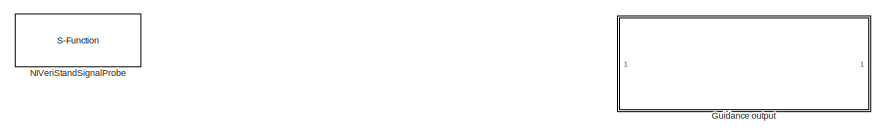
[diagram: root canvas - part 1/3, top center region]
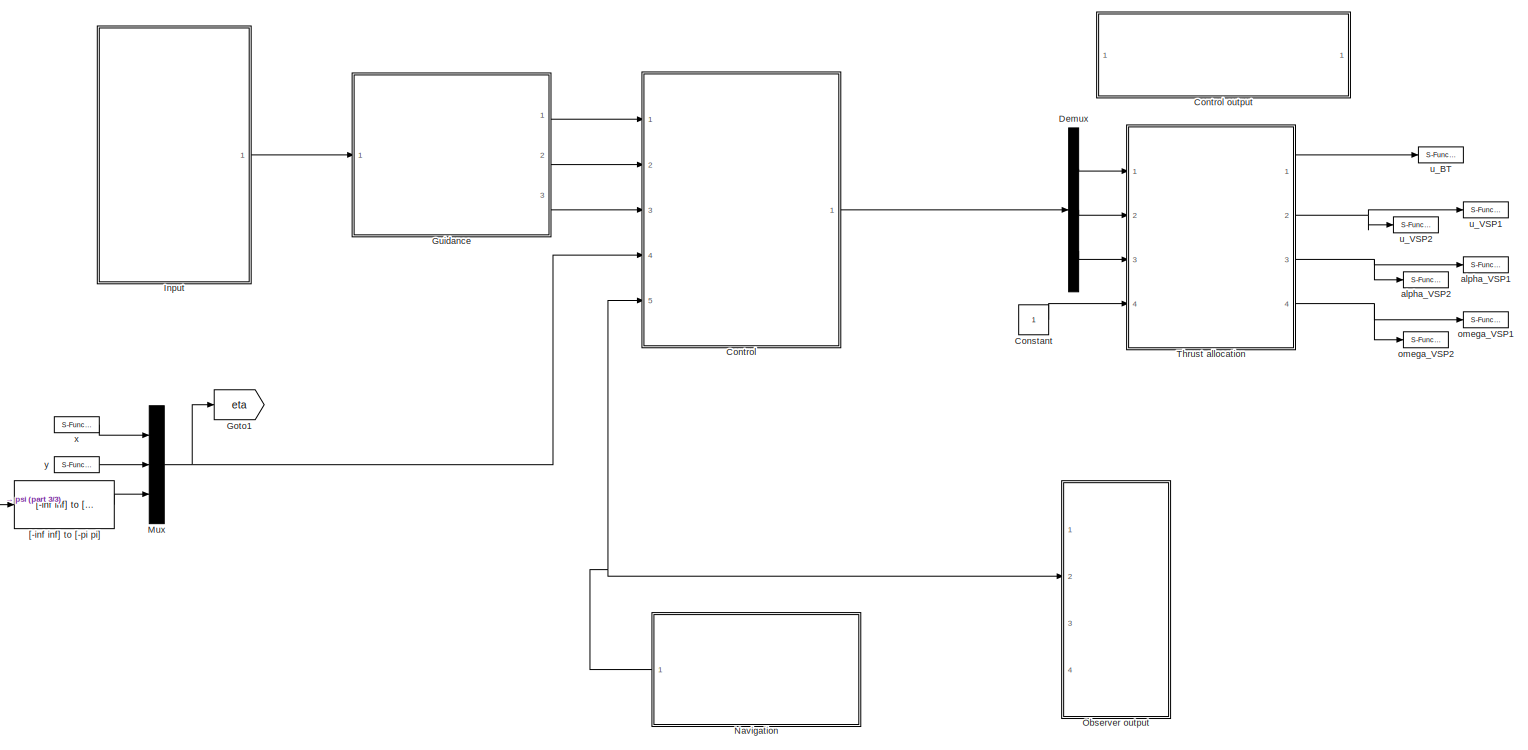
[diagram: root canvas - part 2/3, most of the canvas]
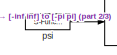
[diagram: root canvas - part 3/3, bottom left region]
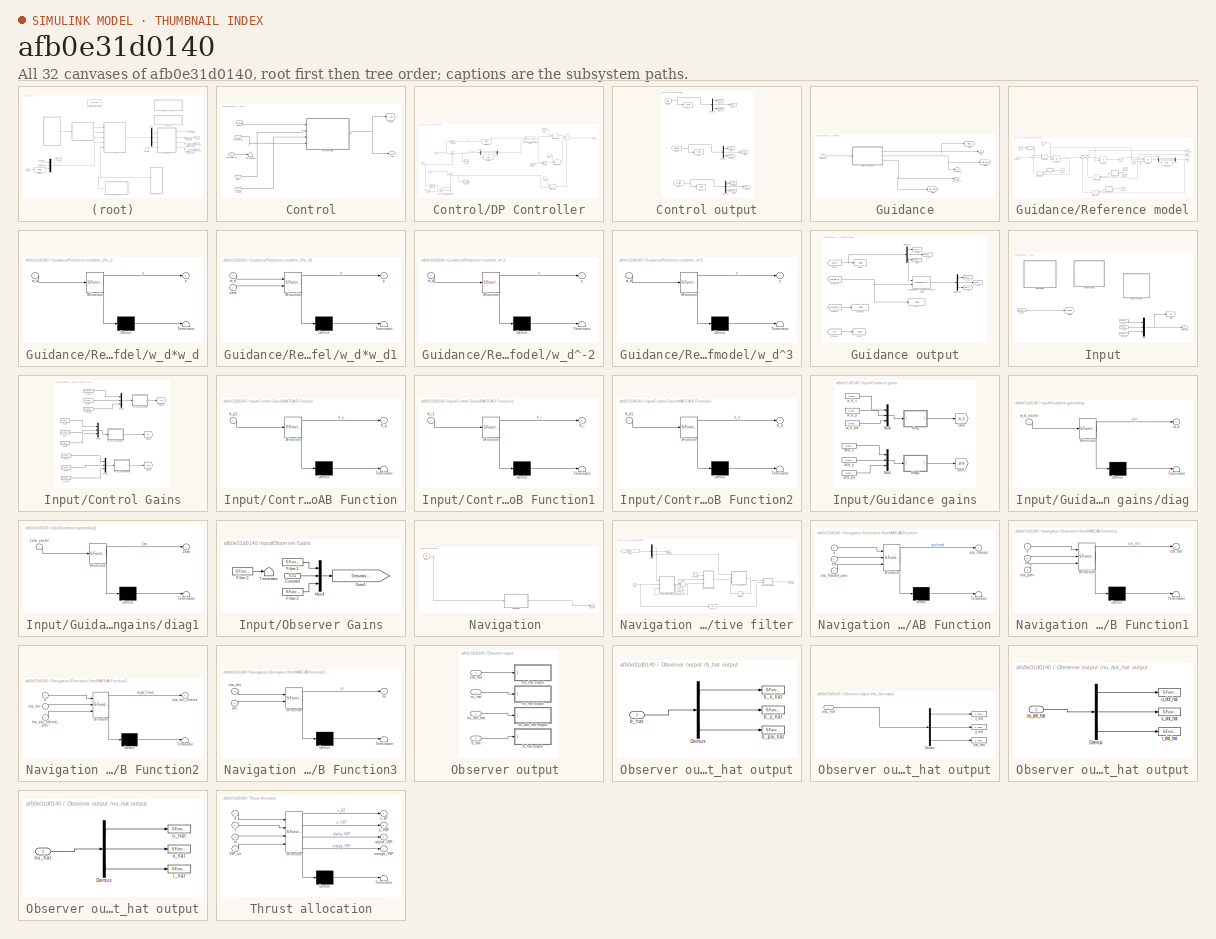
[diagram: thumbnail index - all 32 canvases of the model, root first then tree order]
MODEL slx_afb0e31d0140
KIND model
BLOCK [Constant] Constant
BLOCK [SubSystem] Control
  Ports = [5, 1]
  RequestExecContextInheritance = off
BLOCK [SubSystem] Control output
  Ports = []
  RequestExecContextInheritance = off
BLOCK [Demux] Control output/Demux1
  DisplayOption = bar
  Outputs = 3
  Ports = [1, 3]
BLOCK [Demux] Control output/Demux2
  DisplayOption = bar
  Outputs = 3
  Ports = [1, 3]
BLOCK [Demux] Control output/Demux4
  DisplayOption = bar
  Outputs = 3
  Ports = [1, 3]
BLOCK [From] Control output/From1
  GotoTag = eta_tilde
  TagVisibility = global
BLOCK [From] Control output/From2
  GotoTag = nu_tilde
  TagVisibility = global
BLOCK [From] Control output/From3
  GotoTag = tau
  TagVisibility = global
BLOCK [S-Function] Control output/psi_tilde
  CopyFcn = NIVeriStand_MDL_functions('', 'IO_copy');
  DeleteFcn = NIVeriStand_MDL_functions('', 'IO_delete');
  EnableBusSupport = off
  FunctionName = NIVeriStandIO
  MoveFcn = set_param(gcb, 'Mask', 'on');
  Parameters = width dtype portnum stime stype btype
  Ports = [1]
  Priority = 4
BLOCK [S-Function] Control output/r_tilde
  CopyFcn = NIVeriStand_MDL_functions('', 'IO_copy');
  DeleteFcn = NIVeriStand_MDL_functions('', 'IO_delete');
  EnableBusSupport = off
  FunctionName = NIVeriStandIO
  MoveFcn = set_param(gcb, 'Mask', 'on');
  Parameters = width dtype portnum stime stype btype
  Ports = [1]
  Priority = 7
BLOCK [ToFile] Control output/tau
  Commented = on
  Filename = tau.mat
  MatrixName = tau
  Ports = [1]
BLOCK [ToFile] Control output/tau1
  Commented = on
  Filename = eta_tilde.mat
  MatrixName = eta_tidle
  Ports = [1]
BLOCK [ToFile] Control output/tau2
  Commented = on
  Filename = eta_tilde.mat
  MatrixName = eta_tidle
  Ports = [1]
BLOCK [S-Function] Control output/tau_N
  CopyFcn = NIVeriStand_MDL_functions('', 'IO_copy');
  DeleteFcn = NIVeriStand_MDL_functions('', 'IO_delete');
  EnableBusSupport = off
  FunctionName = NIVeriStandIO
  MoveFcn = set_param(gcb, 'Mask', 'on');
  Parameters = width dtype portnum stime stype btype
  Ports = [1]
  Priority = 1
BLOCK [S-Function] Control output/tau_X
  CopyFcn = NIVeriStand_MDL_functions('', 'IO_copy');
  DeleteFcn = NIVeriStand_MDL_functions('', 'IO_delete');
  EnableBusSupport = off
  FunctionName = NIVeriStandIO
  MoveFcn = set_param(gcb, 'Mask', 'on');
  Parameters = width dtype portnum stime stype btype
  Ports = [1]
  Priority = 2
BLOCK [S-Function] Control output/tau_Y
  CopyFcn = NIVeriStand_MDL_functions('', 'IO_copy');
  DeleteFcn = NIVeriStand_MDL_functions('', 'IO_delete');
  EnableBusSupport = off
  FunctionName = NIVeriStandIO
  MoveFcn = set_param(gcb, 'Mask', 'on');
  Parameters = width dtype portnum stime stype btype
  Ports = [1]
  Priority = 3
BLOCK [S-Function] Control output/u_tilde
  CopyFcn = NIVeriStand_MDL_functions('', 'IO_copy');
  DeleteFcn = NIVeriStand_MDL_functions('', 'IO_delete');
  EnableBusSupport = off
  FunctionName = NIVeriStandIO
  MoveFcn = set_param(gcb, 'Mask', 'on');
  Parameters = width dtype portnum stime stype btype
  Ports = [1]
  Priority = 8
BLOCK [S-Function] Control output/v_tilde
  CopyFcn = NIVeriStand_MDL_functions('', 'IO_copy');
  DeleteFcn = NIVeriStand_MDL_functions('', 'IO_delete');
  EnableBusSupport = off
  FunctionName = NIVeriStandIO
  MoveFcn = set_param(gcb, 'Mask', 'on');
  Parameters = width dtype portnum stime stype btype
  Ports = [1]
  Priority = 9
BLOCK [S-Function] Control output/x_tilde
  CopyFcn = NIVeriStand_MDL_functions('', 'IO_copy');
  DeleteFcn = NIVeriStand_MDL_functions('', 'IO_delete');
  EnableBusSupport = off
  FunctionName = NIVeriStandIO
  MoveFcn = set_param(gcb, 'Mask', 'on');
  Parameters = width dtype portnum stime stype btype
  Ports = [1]
  Priority = 5
BLOCK [S-Function] Control output/y_tidle
  CopyFcn = NIVeriStand_MDL_functions('', 'IO_copy');
  DeleteFcn = NIVeriStand_MDL_functions('', 'IO_delete');
  EnableBusSupport = off
  FunctionName = NIVeriStandIO
  MoveFcn = set_param(gcb, 'Mask', 'on');
  Parameters = width dtype portnum stime stype btype
  Ports = [1]
  Priority = 6
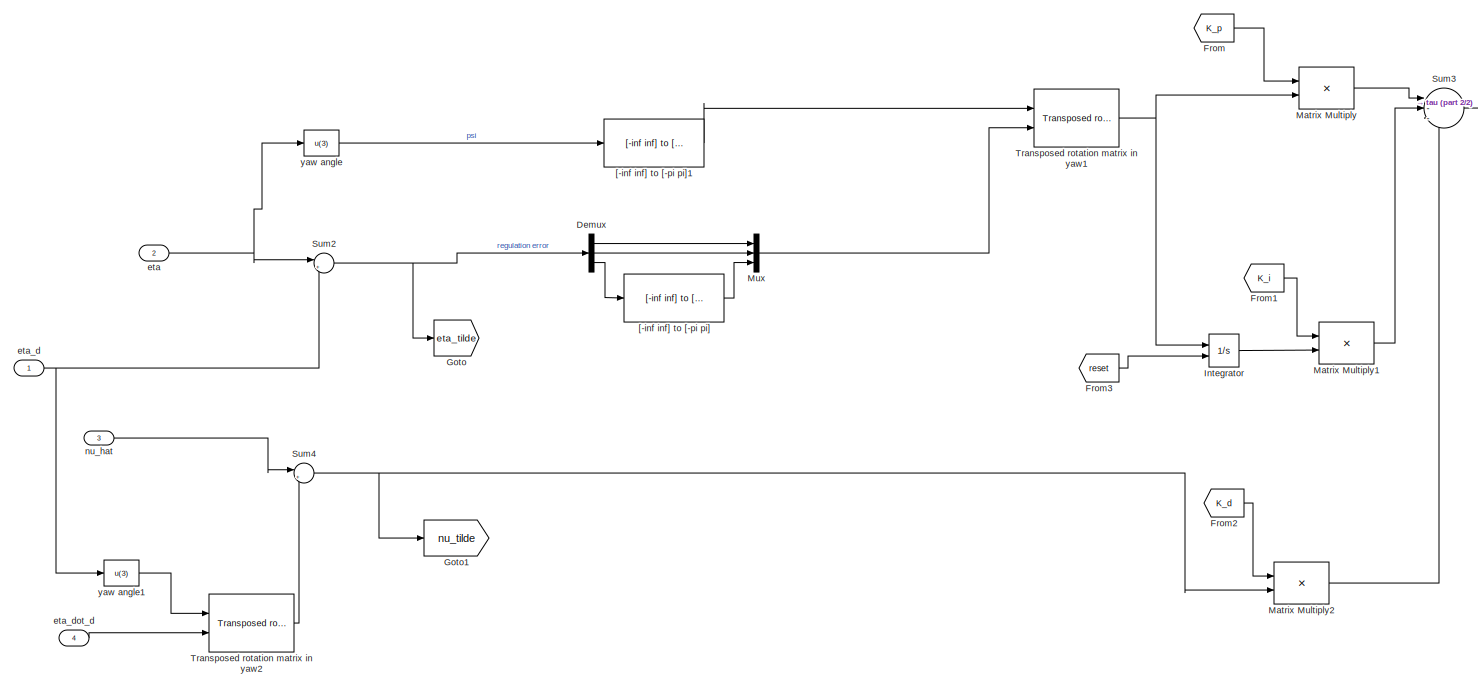
[diagram: Control/DP Controller - part 1/2, most of the canvas]
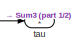
[diagram: Control/DP Controller - part 2/2, top right region]
BLOCK [SubSystem] Control/DP Controller
  Ports = [4, 1]
  RequestExecContextInheritance = off
BLOCK [Demux] Control/DP Controller/Demux
  DisplayOption = bar
  Outputs = 3
  Ports = [1, 3]
BLOCK [From] Control/DP Controller/From
  GotoTag = K_p
  TagVisibility = global
BLOCK [From] Control/DP Controller/From1
  GotoTag = K_i
  TagVisibility = global
BLOCK [From] Control/DP Controller/From2
  GotoTag = K_d
  TagVisibility = global
BLOCK [From] Control/DP Controller/From3
  GotoTag = reset
  TagVisibility = global
BLOCK [Goto] Control/DP Controller/Goto
  GotoTag = eta_tilde
  TagVisibility = global
BLOCK [Goto] Control/DP Controller/Goto1
  GotoTag = nu_tilde
  TagVisibility = global
BLOCK [Integrator] Control/DP Controller/Integrator
  ExternalReset = either
  Ports = [2, 1]
BLOCK [Product] Control/DP Controller/Matrix Multiply
  InputSameDT = off
  Multiplication = Matrix(*)
  OutDataTypeStr = Inherit: Inherit via internal rule
  Ports = [2, 1]
  RndMeth = Floor
  SaturateOnIntegerOverflow = off
BLOCK [Product] Control/DP Controller/Matrix Multiply1
  InputSameDT = off
  Multiplication = Matrix(*)
  OutDataTypeStr = Inherit: Inherit via internal rule
  Ports = [2, 1]
  RndMeth = Floor
  SaturateOnIntegerOverflow = off
BLOCK [Product] Control/DP Controller/Matrix Multiply2
  InputSameDT = off
  Multiplication = Matrix(*)
  OutDataTypeStr = Inherit: Inherit via internal rule
  Ports = [2, 1]
  RndMeth = Floor
  SaturateOnIntegerOverflow = off
BLOCK [Mux] Control/DP Controller/Mux
  DisplayOption = bar
  Inputs = 3
  Ports = [3, 1]
BLOCK [Sum] Control/DP Controller/Sum2
  IconShape = round
  Inputs = |+-
  Ports = [2, 1]
BLOCK [Sum] Control/DP Controller/Sum3
  IconShape = round
  Inputs = |---
  Ports = [3, 1]
BLOCK [Sum] Control/DP Controller/Sum4
  IconShape = round
  Inputs = |+-
  Ports = [2, 1]
BLOCK [Reference] Control/DP Controller/Transposed rotation matrix in yaw1  REF=marine_gnc/Models/ Kinematics/Transposed rotation  (lib defined in mdl_10d96c221ba8, mdl_45f1105420c6)
 matrix in yaw
  Ports = [2, 1]
  SourceBlock = marine_gnc/Models/ Kinematics/Transposed rotation\n matrix in yaw
BLOCK [Reference] Control/DP Controller/Transposed rotation matrix in yaw2  REF=marine_gnc/Models/ Kinematics/Transposed rotation  (lib defined in mdl_10d96c221ba8, mdl_45f1105420c6)
 matrix in yaw
  Ports = [2, 1]
  SourceBlock = marine_gnc/Models/ Kinematics/Transposed rotation\n matrix in yaw
BLOCK [Reference] Control/DP Controller/[-inf inf] to [-pi pi]  REF=marine_gnc/Utilities/Math Operations/[-inf inf] to [-pi pi]  (lib defined in mdl_10d96c221ba8, mdl_45f1105420c6)
  Ports = [1, 1]
  SourceBlock = marine_gnc/Utilities/Math Operations/[-inf inf] to [-pi pi]
  SourceType = [-inf inf] to [-pi pi]
BLOCK [Reference] Control/DP Controller/[-inf inf] to [-pi pi]1  REF=marine_gnc/Utilities/Math Operations/[-inf inf] to [-pi pi]  (lib defined in mdl_10d96c221ba8, mdl_45f1105420c6)
  Ports = [1, 1]
  SourceBlock = marine_gnc/Utilities/Math Operations/[-inf inf] to [-pi pi]
  SourceType = [-inf inf] to [-pi pi]
BLOCK [Inport] Control/DP Controller/eta
  IconDisplay = Port number
  Port = 2
BLOCK [Inport] Control/DP Controller/eta_d
  IconDisplay = Port number
BLOCK [Inport] Control/DP Controller/eta_dot_d
  IconDisplay = Port number
  Port = 4
BLOCK [Inport] Control/DP Controller/nu_hat
  IconDisplay = Port number
  Port = 3
BLOCK [Outport] Control/DP Controller/tau
  IconDisplay = Port number
  InitialOutput = 0
BLOCK [Fcn] Control/DP Controller/yaw angle
  Expr = u(3)
BLOCK [Fcn] Control/DP Controller/yaw angle1
  Expr = u(3)
BLOCK [Goto] Control/Goto
  GotoTag = tau
  TagVisibility = global
BLOCK [Terminator] Control/Terminator
BLOCK [Inport] Control/eta
  IconDisplay = Port number
  Port = 4
BLOCK [Inport] Control/eta_d
  IconDisplay = Port number
BLOCK [Inport] Control/eta_ddot_d
  IconDisplay = Port number
  Port = 3
BLOCK [Inport] Control/eta_dot_d
  IconDisplay = Port number
  Port = 2
BLOCK [Inport] Control/nu_hat
  IconDisplay = Port number
  Port = 5
BLOCK [Outport] Control/tau
  IconDisplay = Port number
BLOCK [Demux] Demux
  DisplayOption = bar
  Outputs = 3
  Ports = [1, 3]
BLOCK [Goto] Goto1
  GotoTag = eta
  TagVisibility = global
BLOCK [SubSystem] Guidance
  Ports = [1, 3]
  RequestExecContextInheritance = off
BLOCK [SubSystem] Guidance output
  Ports = []
  RequestExecContextInheritance = off
BLOCK [Demux] Guidance output/Demux1
  DisplayOption = bar
  Outputs = 3
  Ports = [1, 3]
BLOCK [Demux] Guidance output/Demux2
  DisplayOption = bar
  Outputs = 3
  Ports = [1, 3]
BLOCK [From] Guidance output/From10
  GotoTag = eta_dot_d
  TagVisibility = global
BLOCK [From] Guidance output/From11
  GotoTag = eta_ddot_d
  TagVisibility = global
BLOCK [From] Guidance output/From12
  GotoTag = ref
  TagVisibility = global
BLOCK [From] Guidance output/From9
  GotoTag = eta_d
  TagVisibility = global
BLOCK [Reference] Guidance output/Transposed rotation matrix in yaw2  REF=marine_gnc/Models/ Kinematics/Transposed rotation  (lib defined in mdl_10d96c221ba8, mdl_45f1105420c6)
 matrix in yaw
  Ports = [2, 1]
  SourceBlock = marine_gnc/Models/ Kinematics/Transposed rotation\n matrix in yaw
BLOCK [ToFile] Guidance output/eta1
  Commented = on
  Filename = eta_d.mat
  MatrixName = eta_d
  Ports = [1]
BLOCK [ToFile] Guidance output/eta2
  Commented = on
  Filename = ref.mat
  MatrixName = ref
  Ports = [1]
BLOCK [ToFile] Guidance output/nu 1
  Commented = on
  Filename = eta_dot_d.mat
  MatrixName = eta_dot_d
  Ports = [1]
BLOCK [ToFile] Guidance output/nu_dot1
  Commented = on
  Filename = eta_ddot_d.mat
  MatrixName = eta_ddot_d
  Ports = [1]
BLOCK [S-Function] Guidance output/psi_d
  CopyFcn = NIVeriStand_MDL_functions('', 'IO_copy');
  DeleteFcn = NIVeriStand_MDL_functions('', 'IO_delete');
  EnableBusSupport = off
  FunctionName = NIVeriStandIO
  MoveFcn = set_param(gcb, 'Mask', 'on');
  Parameters = width dtype portnum stime stype btype
  Ports = [1]
  Priority = 3
BLOCK [S-Function] Guidance output/r_d
  CopyFcn = NIVeriStand_MDL_functions('', 'IO_copy');
  DeleteFcn = NIVeriStand_MDL_functions('', 'IO_delete');
  EnableBusSupport = off
  FunctionName = NIVeriStandIO
  MoveFcn = set_param(gcb, 'Mask', 'on');
  Parameters = width dtype portnum stime stype btype
  Ports = [1]
  Priority = 4
BLOCK [S-Function] Guidance output/u_d
  CopyFcn = NIVeriStand_MDL_functions('', 'IO_copy');
  DeleteFcn = NIVeriStand_MDL_functions('', 'IO_delete');
  EnableBusSupport = off
  FunctionName = NIVeriStandIO
  MoveFcn = set_param(gcb, 'Mask', 'on');
  Parameters = width dtype portnum stime stype btype
  Ports = [1]
  Priority = 5
BLOCK [S-Function] Guidance output/v_d
  CopyFcn = NIVeriStand_MDL_functions('', 'IO_copy');
  DeleteFcn = NIVeriStand_MDL_functions('', 'IO_delete');
  EnableBusSupport = off
  FunctionName = NIVeriStandIO
  MoveFcn = set_param(gcb, 'Mask', 'on');
  Parameters = width dtype portnum stime stype btype
  Ports = [1]
  Priority = 6
BLOCK [S-Function] Guidance output/x_d
  CopyFcn = NIVeriStand_MDL_functions('', 'IO_copy');
  DeleteFcn = NIVeriStand_MDL_functions('', 'IO_delete');
  EnableBusSupport = off
  FunctionName = NIVeriStandIO
  MoveFcn = set_param(gcb, 'Mask', 'on');
  Parameters = width dtype portnum stime stype btype
  Ports = [1]
  Priority = 1
BLOCK [S-Function] Guidance output/y_d
  CopyFcn = NIVeriStand_MDL_functions('', 'IO_copy');
  DeleteFcn = NIVeriStand_MDL_functions('', 'IO_delete');
  EnableBusSupport = off
  FunctionName = NIVeriStandIO
  MoveFcn = set_param(gcb, 'Mask', 'on');
  Parameters = width dtype portnum stime stype btype
  Ports = [1]
  Priority = 2
BLOCK [Goto] Guidance/Goto
  GotoTag = eta_d
  TagVisibility = global
BLOCK [Goto] Guidance/Goto1
  GotoTag = eta_dot_d
  TagVisibility = global
BLOCK [Goto] Guidance/Goto2
  GotoTag = eta_ddot_d
  TagVisibility = global
BLOCK [Inport] Guidance/Reference 
  IconDisplay = Port number
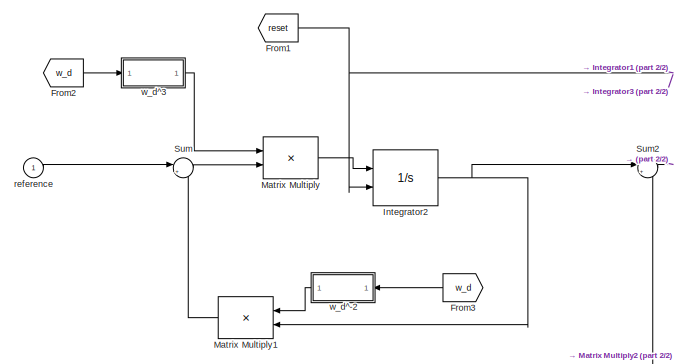
[diagram: Guidance/Reference model - part 1/2, middle left region]
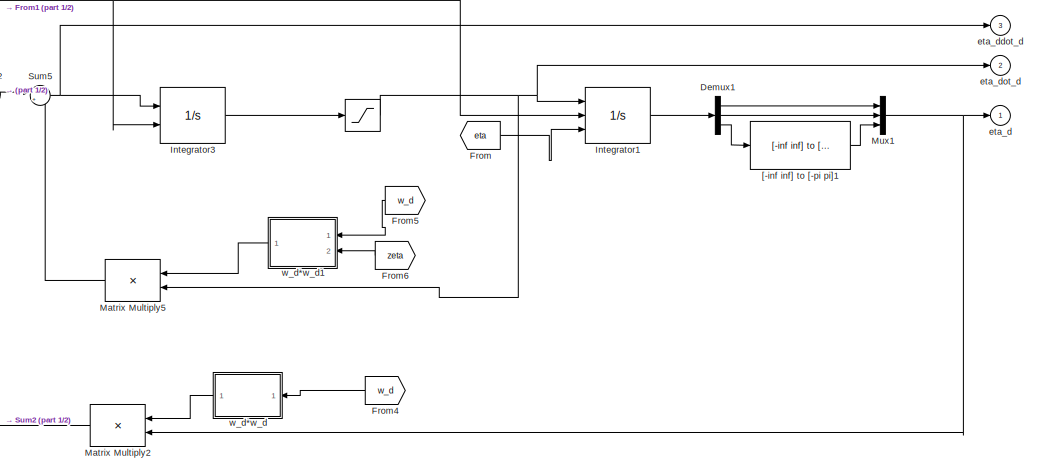
[diagram: Guidance/Reference model - part 2/2, right side, full height]
BLOCK [SubSystem] Guidance/Reference model
  Ports = [1, 3]
  RequestExecContextInheritance = off
BLOCK [Saturate] Guidance/Reference model/       
  Commented = through
  InputPortMap = u0
  LowerLimit = -[0.3 0.1 1]
  Ports = [1, 1]
  UpperLimit = [0.3 0.1 1]
BLOCK [Demux] Guidance/Reference model/Demux1
  DisplayOption = bar
  Outputs = 3
  Ports = [1, 3]
BLOCK [From] Guidance/Reference model/From
  GotoTag = eta
  TagVisibility = global
BLOCK [From] Guidance/Reference model/From1
  GotoTag = reset
  TagVisibility = global
BLOCK [From] Guidance/Reference model/From2
  GotoTag = w_d
  TagVisibility = global
BLOCK [From] Guidance/Reference model/From3
  GotoTag = w_d
  TagVisibility = global
BLOCK [From] Guidance/Reference model/From4
  GotoTag = w_d
  TagVisibility = global
BLOCK [From] Guidance/Reference model/From5
  GotoTag = w_d
  TagVisibility = global
BLOCK [From] Guidance/Reference model/From6
  GotoTag = zeta
  TagVisibility = global
BLOCK [Integrator] Guidance/Reference model/Integrator1
  ExternalReset = either
  InitialConditionSource = external
  Ports = [3, 1]
BLOCK [Integrator] Guidance/Reference model/Integrator2
  ExternalReset = either
  Ports = [2, 1]
BLOCK [Integrator] Guidance/Reference model/Integrator3
  ExternalReset = either
  Ports = [2, 1]
BLOCK [Product] Guidance/Reference model/Matrix Multiply
  InputSameDT = off
  Multiplication = Matrix(*)
  OutDataTypeStr = Inherit: Inherit via internal rule
  Ports = [2, 1]
  RndMeth = Floor
  SaturateOnIntegerOverflow = off
BLOCK [Product] Guidance/Reference model/Matrix Multiply1
  InputSameDT = off
  Multiplication = Matrix(*)
  OutDataTypeStr = Inherit: Inherit via internal rule
  Ports = [2, 1]
  RndMeth = Floor
  SaturateOnIntegerOverflow = off
BLOCK [Product] Guidance/Reference model/Matrix Multiply2
  InputSameDT = off
  Multiplication = Matrix(*)
  OutDataTypeStr = Inherit: Inherit via internal rule
  Ports = [2, 1]
  RndMeth = Floor
  SaturateOnIntegerOverflow = off
BLOCK [Product] Guidance/Reference model/Matrix Multiply5
  InputSameDT = off
  Multiplication = Matrix(*)
  OutDataTypeStr = Inherit: Inherit via internal rule
  Ports = [2, 1]
  RndMeth = Floor
  SaturateOnIntegerOverflow = off
BLOCK [Mux] Guidance/Reference model/Mux1
  DisplayOption = bar
  Inputs = 3
  Ports = [3, 1]
BLOCK [Sum] Guidance/Reference model/Sum
  IconShape = round
  InputSameDT = off
  Inputs = |+-
  OutDataTypeStr = Inherit: Inherit via internal rule
  Ports = [2, 1]
  SaturateOnIntegerOverflow = off
BLOCK [Sum] Guidance/Reference model/Sum2
  IconShape = round
  Inputs = |+-
  Ports = [2, 1]
BLOCK [Sum] Guidance/Reference model/Sum5
  IconShape = round
  Inputs = |+-
  Ports = [2, 1]
BLOCK [Reference] Guidance/Reference model/[-inf inf] to [-pi pi]1  REF=marine_gnc/Utilities/Math Operations/[-inf inf] to [-pi pi]  (lib defined in mdl_10d96c221ba8, mdl_45f1105420c6)
  Ports = [1, 1]
  SourceBlock = marine_gnc/Utilities/Math Operations/[-inf inf] to [-pi pi]
  SourceType = [-inf inf] to [-pi pi]
BLOCK [Outport] Guidance/Reference model/eta_d
  IconDisplay = Port number
  InitialOutput = 0
BLOCK [Outport] Guidance/Reference model/eta_ddot_d
  IconDisplay = Port number
  InitialOutput = 0
  Port = 3
BLOCK [Outport] Guidance/Reference model/eta_dot_d
  IconDisplay = Port number
  InitialOutput = 0
  Port = 2
BLOCK [Inport] Guidance/Reference model/reference
  IconDisplay = Port number
BLOCK [SubSystem] Guidance/Reference model/w_d*w_d
  ErrorFcn = Stateflow.Translate.translate
  PermitHierarchicalResolution = ExplicitOnly
  Ports = [1, 1]
  RequestExecContextInheritance = off
  SFBlockType = MATLAB Function
  TreatAsAtomicUnit = on
BLOCK [Demux] Guidance/Reference model/w_d*w_d/ Demux 
  Outputs = 1
  Ports = [1, 1]
BLOCK [S-Function] Guidance/Reference model/w_d*w_d/ SFunction 
  EnableBusSupport = on
  FunctionName = sf_sfun
  PortCounts = [1 2]
  Ports = [1, 2]
  Tag = Stateflow S-Function ctrl_DP_basic_valle 3
BLOCK [Terminator] Guidance/Reference model/w_d*w_d/ Terminator 
BLOCK [Inport] Guidance/Reference model/w_d*w_d/w_d
  IconDisplay = Port number
BLOCK [Outport] Guidance/Reference model/w_d*w_d/y
  IconDisplay = Port number
BLOCK [SubSystem] Guidance/Reference model/w_d*w_d1
  ErrorFcn = Stateflow.Translate.translate
  PermitHierarchicalResolution = ExplicitOnly
  Ports = [2, 1]
  RequestExecContextInheritance = off
  SFBlockType = MATLAB Function
  TreatAsAtomicUnit = on
BLOCK [Demux] Guidance/Reference model/w_d*w_d1/ Demux 
  Outputs = 1
  Ports = [1, 1]
BLOCK [S-Function] Guidance/Reference model/w_d*w_d1/ SFunction 
  EnableBusSupport = on
  FunctionName = sf_sfun
  PortCounts = [2 2]
  Ports = [2, 2]
  Tag = Stateflow S-Function ctrl_DP_basic_valle 4
BLOCK [Terminator] Guidance/Reference model/w_d*w_d1/ Terminator 
BLOCK [Inport] Guidance/Reference model/w_d*w_d1/w_d
  IconDisplay = Port number
BLOCK [Outport] Guidance/Reference model/w_d*w_d1/y
  IconDisplay = Port number
BLOCK [Inport] Guidance/Reference model/w_d*w_d1/zeta
  IconDisplay = Port number
  Port = 2
BLOCK [SubSystem] Guidance/Reference model/w_d^-2
  ErrorFcn = Stateflow.Translate.translate
  PermitHierarchicalResolution = ExplicitOnly
  Ports = [1, 1]
  RequestExecContextInheritance = off
  SFBlockType = MATLAB Function
  TreatAsAtomicUnit = on
BLOCK [Demux] Guidance/Reference model/w_d^-2/ Demux 
  Outputs = 1
  Ports = [1, 1]
BLOCK [S-Function] Guidance/Reference model/w_d^-2/ SFunction 
  EnableBusSupport = on
  FunctionName = sf_sfun
  PortCounts = [1 2]
  Ports = [1, 2]
  Tag = Stateflow S-Function ctrl_DP_basic_valle 2
BLOCK [Terminator] Guidance/Reference model/w_d^-2/ Terminator 
BLOCK [Inport] Guidance/Reference model/w_d^-2/w_d
  IconDisplay = Port number
BLOCK [Outport] Guidance/Reference model/w_d^-2/y
  IconDisplay = Port number
BLOCK [SubSystem] Guidance/Reference model/w_d^3
  ErrorFcn = Stateflow.Translate.translate
  PermitHierarchicalResolution = ExplicitOnly
  Ports = [1, 1]
  RequestExecContextInheritance = off
  SFBlockType = MATLAB Function
  TreatAsAtomicUnit = on
BLOCK [Demux] Guidance/Reference model/w_d^3/ Demux 
  Outputs = 1
  Ports = [1, 1]
BLOCK [S-Function] Guidance/Reference model/w_d^3/ SFunction 
  EnableBusSupport = on
  FunctionName = sf_sfun
  PortCounts = [1 2]
  Ports = [1, 2]
  Tag = Stateflow S-Function ctrl_DP_basic_valle 5
BLOCK [Terminator] Guidance/Reference model/w_d^3/ Terminator 
BLOCK [Inport] Guidance/Reference model/w_d^3/w_d
  IconDisplay = Port number
BLOCK [Outport] Guidance/Reference model/w_d^3/y
  IconDisplay = Port number
BLOCK [Outport] Guidance/eta_d
  IconDisplay = Port number
BLOCK [Outport] Guidance/eta_ddot_d
  IconDisplay = Port number
  Port = 3
BLOCK [Outport] Guidance/eta_dot_d
  IconDisplay = Port number
  Port = 2
BLOCK [SubSystem] Input
  Ports = [0, 1]
  RequestExecContextInheritance = off
BLOCK [SubSystem] Input/Control Gains
  Ports = []
  RequestExecContextInheritance = off
BLOCK [Goto] Input/Control Gains/Goto2
  GotoTag = K_p
  TagVisibility = global
BLOCK [Goto] Input/Control Gains/Goto3
  GotoTag = K_i
  TagVisibility = global
BLOCK [Goto] Input/Control Gains/Goto4
  GotoTag = K_d
  TagVisibility = global
BLOCK [S-Function] Input/Control Gains/K_d_psi
  CopyFcn = NIVeriStand_MDL_functions('', 'IO_copy');
  DeleteFcn = NIVeriStand_MDL_functions('', 'IO_delete');
  EnableBusSupport = off
  FunctionName = NIVeriStandIO
  MoveFcn = set_param(gcb, 'Mask', 'on');
  Parameters = width dtype portnum stime stype btype
  Ports = [0, 1]
  Priority = 7
BLOCK [S-Function] Input/Control Gains/K_d_x
  CopyFcn = NIVeriStand_MDL_functions('', 'IO_copy');
  DeleteFcn = NIVeriStand_MDL_functions('', 'IO_delete');
  EnableBusSupport = off
  FunctionName = NIVeriStandIO
  MoveFcn = set_param(gcb, 'Mask', 'on');
  Parameters = width dtype portnum stime stype btype
  Ports = [0, 1]
  Priority = 8
BLOCK [S-Function] Input/Control Gains/K_d_y
  CopyFcn = NIVeriStand_MDL_functions('', 'IO_copy');
  DeleteFcn = NIVeriStand_MDL_functions('', 'IO_delete');
  EnableBusSupport = off
  FunctionName = NIVeriStandIO
  MoveFcn = set_param(gcb, 'Mask', 'on');
  Parameters = width dtype portnum stime stype btype
  Ports = [0, 1]
  Priority = 9
BLOCK [S-Function] Input/Control Gains/K_i_psi
  CopyFcn = NIVeriStand_MDL_functions('', 'IO_copy');
  DeleteFcn = NIVeriStand_MDL_functions('', 'IO_delete');
  EnableBusSupport = off
  FunctionName = NIVeriStandIO
  MoveFcn = set_param(gcb, 'Mask', 'on');
  Parameters = width dtype portnum stime stype btype
  Ports = [0, 1]
  Priority = 4
BLOCK [S-Function] Input/Control Gains/K_i_x
  CopyFcn = NIVeriStand_MDL_functions('', 'IO_copy');
  DeleteFcn = NIVeriStand_MDL_functions('', 'IO_delete');
  EnableBusSupport = off
  FunctionName = NIVeriStandIO
  MoveFcn = set_param(gcb, 'Mask', 'on');
  Parameters = width dtype portnum stime stype btype
  Ports = [0, 1]
  Priority = 5
BLOCK [S-Function] Input/Control Gains/K_i_y
  CopyFcn = NIVeriStand_MDL_functions('', 'IO_copy');
  DeleteFcn = NIVeriStand_MDL_functions('', 'IO_delete');
  EnableBusSupport = off
  FunctionName = NIVeriStandIO
  MoveFcn = set_param(gcb, 'Mask', 'on');
  Parameters = width dtype portnum stime stype btype
  Ports = [0, 1]
  Priority = 6
BLOCK [S-Function] Input/Control Gains/K_p_psi
  CopyFcn = NIVeriStand_MDL_functions('', 'IO_copy');
  DeleteFcn = NIVeriStand_MDL_functions('', 'IO_delete');
  EnableBusSupport = off
  FunctionName = NIVeriStandIO
  MoveFcn = set_param(gcb, 'Mask', 'on');
  Parameters = width dtype portnum stime stype btype
  Ports = [0, 1]
  Priority = 3
BLOCK [S-Function] Input/Control Gains/K_p_x
  CopyFcn = NIVeriStand_MDL_functions('', 'IO_copy');
  DeleteFcn = NIVeriStand_MDL_functions('', 'IO_delete');
  EnableBusSupport = off
  FunctionName = NIVeriStandIO
  MoveFcn = set_param(gcb, 'Mask', 'on');
  Parameters = width dtype portnum stime stype btype
  Ports = [0, 1]
  Priority = 1
BLOCK [S-Function] Input/Control Gains/K_p_y
  CopyFcn = NIVeriStand_MDL_functions('', 'IO_copy');
  DeleteFcn = NIVeriStand_MDL_functions('', 'IO_delete');
  EnableBusSupport = off
  FunctionName = NIVeriStandIO
  MoveFcn = set_param(gcb, 'Mask', 'on');
  Parameters = width dtype portnum stime stype btype
  Ports = [0, 1]
  Priority = 2
BLOCK [SubSystem] Input/Control Gains/MATLAB Function
  ErrorFcn = Stateflow.Translate.translate
  PermitHierarchicalResolution = ExplicitOnly
  Ports = [1, 1]
  RequestExecContextInheritance = off
  SFBlockType = MATLAB Function
  TreatAsAtomicUnit = on
BLOCK [Demux] Input/Control Gains/MATLAB Function/ Demux 
  Outputs = 1
  Ports = [1, 1]
BLOCK [S-Function] Input/Control Gains/MATLAB Function/ SFunction 
  EnableBusSupport = on
  FunctionName = sf_sfun
  PortCounts = [1 2]
  Ports = [1, 2]
  Tag = Stateflow S-Function ctrl_DP_basic_valle 16
BLOCK [Terminator] Input/Control Gains/MATLAB Function/ Terminator 
BLOCK [Outport] Input/Control Gains/MATLAB Function/K_p
  IconDisplay = Port number
BLOCK [Inport] Input/Control Gains/MATLAB Function/K_p1
  IconDisplay = Port number
BLOCK [SubSystem] Input/Control Gains/MATLAB Function1
  ErrorFcn = Stateflow.Translate.translate
  PermitHierarchicalResolution = ExplicitOnly
  Ports = [1, 1]
  RequestExecContextInheritance = off
  SFBlockType = MATLAB Function
  TreatAsAtomicUnit = on
BLOCK [Demux] Input/Control Gains/MATLAB Function1/ Demux 
  Outputs = 1
  Ports = [1, 1]
BLOCK [S-Function] Input/Control Gains/MATLAB Function1/ SFunction 
  EnableBusSupport = on
  FunctionName = sf_sfun
  PortCounts = [1 2]
  Ports = [1, 2]
  Tag = Stateflow S-Function ctrl_DP_basic_valle 17
BLOCK [Terminator] Input/Control Gains/MATLAB Function1/ Terminator 
BLOCK [Outport] Input/Control Gains/MATLAB Function1/K_i
  IconDisplay = Port number
BLOCK [Inport] Input/Control Gains/MATLAB Function1/K_i1
  IconDisplay = Port number
BLOCK [SubSystem] Input/Control Gains/MATLAB Function2
  ErrorFcn = Stateflow.Translate.translate
  PermitHierarchicalResolution = ExplicitOnly
  Ports = [1, 1]
  RequestExecContextInheritance = off
  SFBlockType = MATLAB Function
  TreatAsAtomicUnit = on
BLOCK [Demux] Input/Control Gains/MATLAB Function2/ Demux 
  Outputs = 1
  Ports = [1, 1]
BLOCK [S-Function] Input/Control Gains/MATLAB Function2/ SFunction 
  EnableBusSupport = on
  FunctionName = sf_sfun
  PortCounts = [1 2]
  Ports = [1, 2]
  Tag = Stateflow S-Function ctrl_DP_basic_valle 18
BLOCK [Terminator] Input/Control Gains/MATLAB Function2/ Terminator 
BLOCK [Outport] Input/Control Gains/MATLAB Function2/K_d
  IconDisplay = Port number
BLOCK [Inport] Input/Control Gains/MATLAB Function2/K_d1
  IconDisplay = Port number
BLOCK [Mux] Input/Control Gains/Mux1
  DisplayOption = bar
  Inputs = 3
  Ports = [3, 1]
BLOCK [Mux] Input/Control Gains/Mux2
  DisplayOption = bar
  Inputs = 3
  Ports = [3, 1]
BLOCK [Mux] Input/Control Gains/Mux3
  DisplayOption = bar
  Inputs = 3
  Ports = [3, 1]
BLOCK [Goto] Input/Goto
  GotoTag = ref
  TagVisibility = global
BLOCK [Goto] Input/Goto3
  GotoTag = reset
  TagVisibility = global
BLOCK [SubSystem] Input/Guidance gains
  Ports = []
  RequestExecContextInheritance = off
BLOCK [Goto] Input/Guidance gains/Goto
  GotoTag = w_d
  TagVisibility = global
BLOCK [Goto] Input/Guidance gains/Goto1
  GotoTag = zeta
  TagVisibility = global
BLOCK [Mux] Input/Guidance gains/Mux4
  DisplayOption = bar
  Inputs = 3
  Ports = [3, 1]
BLOCK [Mux] Input/Guidance gains/Mux5
  DisplayOption = bar
  Inputs = 3
  Ports = [3, 1]
BLOCK [SubSystem] Input/Guidance gains/diag
  ErrorFcn = Stateflow.Translate.translate
  PermitHierarchicalResolution = ExplicitOnly
  Ports = [1, 1]
  RequestExecContextInheritance = off
  SFBlockType = MATLAB Function
  TreatAsAtomicUnit = on
BLOCK [Demux] Input/Guidance gains/diag/ Demux 
  Outputs = 1
  Ports = [1, 1]
BLOCK [S-Function] Input/Guidance gains/diag/ SFunction 
  EnableBusSupport = on
  FunctionName = sf_sfun
  PortCounts = [1 2]
  Ports = [1, 2]
  Tag = Stateflow S-Function ctrl_DP_basic_valle 24
BLOCK [Terminator] Input/Guidance gains/diag/ Terminator 
BLOCK [Outport] Input/Guidance gains/diag/w_d
  IconDisplay = Port number
BLOCK [Inport] Input/Guidance gains/diag/w_d_vector
  IconDisplay = Port number
BLOCK [SubSystem] Input/Guidance gains/diag1
  ErrorFcn = Stateflow.Translate.translate
  PermitHierarchicalResolution = ExplicitOnly
  Ports = [1, 1]
  RequestExecContextInheritance = off
  SFBlockType = MATLAB Function
  TreatAsAtomicUnit = on
BLOCK [Demux] Input/Guidance gains/diag1/ Demux 
  Outputs = 1
  Ports = [1, 1]
BLOCK [S-Function] Input/Guidance gains/diag1/ SFunction 
  EnableBusSupport = on
  FunctionName = sf_sfun
  PortCounts = [1 2]
  Ports = [1, 2]
  Tag = Stateflow S-Function ctrl_DP_basic_valle 25
BLOCK [Terminator] Input/Guidance gains/diag1/ Terminator 
BLOCK [Outport] Input/Guidance gains/diag1/Zeta
  IconDisplay = Port number
BLOCK [Inport] Input/Guidance gains/diag1/zeta_vector
  IconDisplay = Port number
BLOCK [S-Function] Input/Guidance gains/w_d_psi
  CopyFcn = NIVeriStand_MDL_functions('', 'IO_copy');
  DeleteFcn = NIVeriStand_MDL_functions('', 'IO_delete');
  EnableBusSupport = off
  FunctionName = NIVeriStandIO
  MoveFcn = set_param(gcb, 'Mask', 'on');
  Parameters = width dtype portnum stime stype btype
  Ports = [0, 1]
  Priority = 3
BLOCK [S-Function] Input/Guidance gains/w_d_x
  CopyFcn = NIVeriStand_MDL_functions('', 'IO_copy');
  DeleteFcn = NIVeriStand_MDL_functions('', 'IO_delete');
  EnableBusSupport = off
  FunctionName = NIVeriStandIO
  MoveFcn = set_param(gcb, 'Mask', 'on');
  Parameters = width dtype portnum stime stype btype
  Ports = [0, 1]
  Priority = 1
BLOCK [S-Function] Input/Guidance gains/w_d_y
  CopyFcn = NIVeriStand_MDL_functions('', 'IO_copy');
  DeleteFcn = NIVeriStand_MDL_functions('', 'IO_delete');
  EnableBusSupport = off
  FunctionName = NIVeriStandIO
  MoveFcn = set_param(gcb, 'Mask', 'on');
  Parameters = width dtype portnum stime stype btype
  Ports = [0, 1]
  Priority = 2
BLOCK [S-Function] Input/Guidance gains/zeta_psi
  CopyFcn = NIVeriStand_MDL_functions('', 'IO_copy');
  DeleteFcn = NIVeriStand_MDL_functions('', 'IO_delete');
  EnableBusSupport = off
  FunctionName = NIVeriStandIO
  MoveFcn = set_param(gcb, 'Mask', 'on');
  Parameters = width dtype portnum stime stype btype
  Ports = [0, 1]
  Priority = 4
BLOCK [S-Function] Input/Guidance gains/zeta_x
  CopyFcn = NIVeriStand_MDL_functions('', 'IO_copy');
  DeleteFcn = NIVeriStand_MDL_functions('', 'IO_delete');
  EnableBusSupport = off
  FunctionName = NIVeriStandIO
  MoveFcn = set_param(gcb, 'Mask', 'on');
  Parameters = width dtype portnum stime stype btype
  Ports = [0, 1]
  Priority = 5
BLOCK [S-Function] Input/Guidance gains/zeta_y
  CopyFcn = NIVeriStand_MDL_functions('', 'IO_copy');
  DeleteFcn = NIVeriStand_MDL_functions('', 'IO_delete');
  EnableBusSupport = off
  FunctionName = NIVeriStandIO
  MoveFcn = set_param(gcb, 'Mask', 'on');
  Parameters = width dtype portnum stime stype btype
  Ports = [0, 1]
  Priority = 6
BLOCK [Mux] Input/Mux
  DisplayOption = bar
  Inputs = 3
  Ports = [3, 1]
BLOCK [SubSystem] Input/Observer Gains
  Ports = []
  RequestExecContextInheritance = off
BLOCK [Constant] Input/Observer Gains/Constant
  Value = 0.01
BLOCK [S-Function] Input/Observer Gains/Filter 1
  CopyFcn = NIVeriStand_MDL_functions('', 'IO_copy');
  DeleteFcn = NIVeriStand_MDL_functions('', 'IO_delete');
  EnableBusSupport = off
  FunctionName = NIVeriStandIO
  MoveFcn = set_param(gcb, 'Mask', 'on');
  Parameters = width dtype portnum stime stype btype
  Ports = [0, 1]
  Priority = 1
BLOCK [S-Function] Input/Observer Gains/Filter 2
  CopyFcn = NIVeriStand_MDL_functions('', 'IO_copy');
  DeleteFcn = NIVeriStand_MDL_functions('', 'IO_delete');
  EnableBusSupport = off
  FunctionName = NIVeriStandIO
  MoveFcn = set_param(gcb, 'Mask', 'on');
  Parameters = width dtype portnum stime stype btype
  Ports = [0, 1]
  Priority = 2
BLOCK [S-Function] Input/Observer Gains/Filter 3
  CopyFcn = NIVeriStand_MDL_functions('', 'IO_copy');
  DeleteFcn = NIVeriStand_MDL_functions('', 'IO_delete');
  EnableBusSupport = off
  FunctionName = NIVeriStandIO
  MoveFcn = set_param(gcb, 'Mask', 'on');
  Parameters = width dtype portnum stime stype btype
  Ports = [0, 1]
  Priority = 3
BLOCK [Goto] Input/Observer Gains/Goto1
  GotoTag = Derivative_filter_gain
  TagVisibility = global
BLOCK [Mux] Input/Observer Gains/Mux4
  DisplayOption = bar
  Inputs = 3
  Ports = [3, 1]
BLOCK [Terminator] Input/Observer Gains/Terminator
BLOCK [S-Function] Input/psi_ref
  CopyFcn = NIVeriStand_MDL_functions('', 'IO_copy');
  DeleteFcn = NIVeriStand_MDL_functions('', 'IO_delete');
  EnableBusSupport = off
  FunctionName = NIVeriStandIO
  MoveFcn = set_param(gcb, 'Mask', 'on');
  Parameters = width dtype portnum stime stype btype
  Ports = [0, 1]
  Priority = 2
BLOCK [Outport] Input/reference
  IconDisplay = Port number
BLOCK [S-Function] Input/reset
  CopyFcn = NIVeriStand_MDL_functions('', 'IO_copy');
  DeleteFcn = NIVeriStand_MDL_functions('', 'IO_delete');
  EnableBusSupport = off
  FunctionName = NIVeriStandIO
  MoveFcn = set_param(gcb, 'Mask', 'on');
  Parameters = width dtype portnum stime stype btype
  Ports = [0, 1]
  Priority = 1
BLOCK [S-Function] Input/x_ref
  CopyFcn = NIVeriStand_MDL_functions('', 'IO_copy');
  DeleteFcn = NIVeriStand_MDL_functions('', 'IO_delete');
  EnableBusSupport = off
  FunctionName = NIVeriStandIO
  MoveFcn = set_param(gcb, 'Mask', 'on');
  Parameters = width dtype portnum stime stype btype
  Ports = [0, 1]
  Priority = 3
BLOCK [S-Function] Input/y_ref
  CopyFcn = NIVeriStand_MDL_functions('', 'IO_copy');
  DeleteFcn = NIVeriStand_MDL_functions('', 'IO_delete');
  EnableBusSupport = off
  FunctionName = NIVeriStandIO
  MoveFcn = set_param(gcb, 'Mask', 'on');
  Parameters = width dtype portnum stime stype btype
  Ports = [0, 1]
  Priority = 4
BLOCK [Mux] Mux
  DisplayOption = bar
  Inputs = 3
  Ports = [3, 1]
BLOCK [S-Function] NIVeriStandSignalProbe
  EnableBusSupport = off
  FunctionName = NIVeriStandSignalProbe
  Parameters = 1
  Ports = []
BLOCK [SubSystem] Navigation 
  Ports = [0, 1]
  RequestExecContextInheritance = off
BLOCK [SubSystem] Navigation /Derivative filter
  Ports = [1, 1]
  RequestExecContextInheritance = off
BLOCK [Constant] Navigation /Derivative filter/Constant1
  Value = 0.01
BLOCK [Delay] Navigation /Derivative filter/Delay
  DelayLength = 1
  InitialCondition = 0
  InitialConditionSource = Input port
  InputPortMap = u0,p4
  Ports = [2, 1]
BLOCK [Demux] Navigation /Derivative filter/Demux
  DisplayOption = bar
  Outputs = 3
  Ports = [1, 3]
BLOCK [Fcn] Navigation /Derivative filter/Fcn
  Expr = u(3)
BLOCK [From] Navigation /Derivative filter/From
  GotoTag = Derivative_filter_gain
  TagVisibility = global
BLOCK [From] Navigation /Derivative filter/From1
  GotoTag = eta
  TagVisibility = global
BLOCK [SubSystem] Navigation /Derivative filter/MATLAB Function
  ErrorFcn = Stateflow.Translate.translate
  PermitHierarchicalResolution = ExplicitOnly
  Ports = [3, 1]
  RequestExecContextInheritance = off
  SFBlockType = MATLAB Function
  TreatAsAtomicUnit = on
BLOCK [Demux] Navigation /Derivative filter/MATLAB Function/ Demux 
  Outputs = 1
  Ports = [1, 1]
BLOCK [S-Function] Navigation /Derivative filter/MATLAB Function/ SFunction 
  EnableBusSupport = on
  FunctionName = sf_sfun
  PortCounts = [3 2]
  Ports = [3, 2]
  Tag = Stateflow S-Function ctrl_DP_basic_valle 32
BLOCK [Terminator] Navigation /Derivative filter/MATLAB Function/ Terminator 
BLOCK [Inport] Navigation /Derivative filter/MATLAB Function/a
  IconDisplay = Port number
BLOCK [Inport] Navigation /Derivative filter/MATLAB Function/eta
  IconDisplay = Port number
  Port = 2
BLOCK [Outport] Navigation /Derivative filter/MATLAB Function/eta_filtered
  IconDisplay = Port number
BLOCK [Inport] Navigation /Derivative filter/MATLAB Function/eta_filtered_prev
  IconDisplay = Port number
  Port = 3
BLOCK [SubSystem] Navigation /Derivative filter/MATLAB Function1
  ErrorFcn = Stateflow.Translate.translate
  PermitHierarchicalResolution = ExplicitOnly
  Ports = [3, 1]
  RequestExecContextInheritance = off
  SFBlockType = MATLAB Function
  TreatAsAtomicUnit = on
BLOCK [Demux] Navigation /Derivative filter/MATLAB Function1/ Demux 
  Outputs = 1
  Ports = [1, 1]
BLOCK [S-Function] Navigation /Derivative filter/MATLAB Function1/ SFunction 
  EnableBusSupport = on
  FunctionName = sf_sfun
  PortCounts = [3 2]
  Ports = [3, 2]
  Tag = Stateflow S-Function ctrl_DP_basic_valle 33
BLOCK [Terminator] Navigation /Derivative filter/MATLAB Function1/ Terminator 
BLOCK [Inport] Navigation /Derivative filter/MATLAB Function1/eta
  IconDisplay = Port number
  Port = 2
BLOCK [Outport] Navigation /Derivative filter/MATLAB Function1/eta_dot
  IconDisplay = Port number
BLOCK [Inport] Navigation /Derivative filter/MATLAB Function1/eta_prev
  IconDisplay = Port number
  Port = 3
BLOCK [Inport] Navigation /Derivative filter/MATLAB Function1/h
  IconDisplay = Port number
BLOCK [SubSystem] Navigation /Derivative filter/MATLAB Function2
  ErrorFcn = Stateflow.Translate.translate
  PermitHierarchicalResolution = ExplicitOnly
  Ports = [3, 1]
  RequestExecContextInheritance = off
  SFBlockType = MATLAB Function
  TreatAsAtomicUnit = on
BLOCK [Demux] Navigation /Derivative filter/MATLAB Function2/ Demux 
  Outputs = 1
  Ports = [1, 1]
BLOCK [S-Function] Navigation /Derivative filter/MATLAB Function2/ SFunction 
  EnableBusSupport = on
  FunctionName = sf_sfun
  PortCounts = [3 2]
  Ports = [3, 2]
  Tag = Stateflow S-Function ctrl_DP_basic_valle 34
BLOCK [Terminator] Navigation /Derivative filter/MATLAB Function2/ Terminator 
BLOCK [Inport] Navigation /Derivative filter/MATLAB Function2/a
  IconDisplay = Port number
BLOCK [Inport] Navigation /Derivative filter/MATLAB Function2/eta_dot
  IconDisplay = Port number
  Port = 2
BLOCK [Outport] Navigation /Derivative filter/MATLAB Function2/eta_dot_filtered
  IconDisplay = Port number
BLOCK [Inport] Navigation /Derivative filter/MATLAB Function2/eta_dot_filtered_prev
  IconDisplay = Port number
  Port = 3
BLOCK [SubSystem] Navigation /Derivative filter/MATLAB Function3
  ErrorFcn = Stateflow.Translate.translate
  PermitHierarchicalResolution = ExplicitOnly
  Ports = [2, 1]
  RequestExecContextInheritance = off
  SFBlockType = MATLAB Function
  TreatAsAtomicUnit = on
BLOCK [Demux] Navigation /Derivative filter/MATLAB Function3/ Demux 
  Outputs = 1
  Ports = [1, 1]
BLOCK [S-Function] Navigation /Derivative filter/MATLAB Function3/ SFunction 
  EnableBusSupport = on
  FunctionName = sf_sfun
  PortCounts = [2 2]
  Ports = [2, 2]
  Tag = Stateflow S-Function ctrl_DP_basic_valle 35
BLOCK [Terminator] Navigation /Derivative filter/MATLAB Function3/ Terminator 
BLOCK [Inport] Navigation /Derivative filter/MATLAB Function3/eta_dot
  IconDisplay = Port number
BLOCK [Outport] Navigation /Derivative filter/MATLAB Function3/nu
  IconDisplay = Port number
BLOCK [Inport] Navigation /Derivative filter/MATLAB Function3/psi
  IconDisplay = Port number
  Port = 2
BLOCK [Memory] Navigation /Derivative filter/Memory3
  X0 = [0 0 0]
BLOCK [Terminator] Navigation /Derivative filter/Terminator
BLOCK [Inport] Navigation /Derivative filter/eta
  IconDisplay = Port number
BLOCK [Outport] Navigation /Derivative filter/nu_hat
  IconDisplay = Port number
BLOCK [From] Navigation /From
  GotoTag = eta
  TagVisibility = global
BLOCK [Outport] Navigation /nu_hat
  IconDisplay = Port number
BLOCK [SubSystem] Observer output 
  Ports = [4]
  RequestExecContextInheritance = off
BLOCK [Inport] Observer output /b_hat
  IconDisplay = Port number
  Port = 4
BLOCK [SubSystem] Observer output /b_hat output
  Ports = [1]
  RequestExecContextInheritance = off
BLOCK [Demux] Observer output /b_hat output/Demux
  DisplayOption = bar
  Outputs = 3
  Ports = [1, 3]
BLOCK [Inport] Observer output /b_hat output/b_hat
  IconDisplay = Port number
BLOCK [S-Function] Observer output /b_hat output/b_psi_hat
  CopyFcn = NIVeriStand_MDL_functions('', 'IO_copy');
  DeleteFcn = NIVeriStand_MDL_functions('', 'IO_delete');
  EnableBusSupport = off
  FunctionName = NIVeriStandIO
  MoveFcn = set_param(gcb, 'Mask', 'on');
  Parameters = width dtype portnum stime stype btype
  Ports = [1]
  Priority = 3
BLOCK [S-Function] Observer output /b_hat output/b_x_hat
  CopyFcn = NIVeriStand_MDL_functions('', 'IO_copy');
  DeleteFcn = NIVeriStand_MDL_functions('', 'IO_delete');
  EnableBusSupport = off
  FunctionName = NIVeriStandIO
  MoveFcn = set_param(gcb, 'Mask', 'on');
  Parameters = width dtype portnum stime stype btype
  Ports = [1]
  Priority = 1
BLOCK [S-Function] Observer output /b_hat output/b_y_hat
  CopyFcn = NIVeriStand_MDL_functions('', 'IO_copy');
  DeleteFcn = NIVeriStand_MDL_functions('', 'IO_delete');
  EnableBusSupport = off
  FunctionName = NIVeriStandIO
  MoveFcn = set_param(gcb, 'Mask', 'on');
  Parameters = width dtype portnum stime stype btype
  Ports = [1]
  Priority = 2
BLOCK [Inport] Observer output /eta_hat
  IconDisplay = Port number
BLOCK [SubSystem] Observer output /eta_hat output
  Ports = [1]
  RequestExecContextInheritance = off
BLOCK [Demux] Observer output /eta_hat output/Demux
  DisplayOption = bar
  Outputs = 3
  Ports = [1, 3]
BLOCK [Inport] Observer output /eta_hat output/eta-_hat
  IconDisplay = Port number
BLOCK [S-Function] Observer output /eta_hat output/psi_hat
  CopyFcn = NIVeriStand_MDL_functions('', 'IO_copy');
  DeleteFcn = NIVeriStand_MDL_functions('', 'IO_delete');
  EnableBusSupport = off
  FunctionName = NIVeriStandIO
  MoveFcn = set_param(gcb, 'Mask', 'on');
  Parameters = width dtype portnum stime stype btype
  Ports = [1]
  Priority = 3
BLOCK [S-Function] Observer output /eta_hat output/x_hat
  CopyFcn = NIVeriStand_MDL_functions('', 'IO_copy');
  DeleteFcn = NIVeriStand_MDL_functions('', 'IO_delete');
  EnableBusSupport = off
  FunctionName = NIVeriStandIO
  MoveFcn = set_param(gcb, 'Mask', 'on');
  Parameters = width dtype portnum stime stype btype
  Ports = [1]
  Priority = 1
BLOCK [S-Function] Observer output /eta_hat output/y_hat
  CopyFcn = NIVeriStand_MDL_functions('', 'IO_copy');
  DeleteFcn = NIVeriStand_MDL_functions('', 'IO_delete');
  EnableBusSupport = off
  FunctionName = NIVeriStandIO
  MoveFcn = set_param(gcb, 'Mask', 'on');
  Parameters = width dtype portnum stime stype btype
  Ports = [1]
  Priority = 2
BLOCK [Inport] Observer output /nu_dot_hat
  IconDisplay = Port number
  Port = 3
BLOCK [SubSystem] Observer output /nu_dot_hat output
  Ports = [1]
  RequestExecContextInheritance = off
BLOCK [Demux] Observer output /nu_dot_hat output/Demux
  DisplayOption = bar
  Outputs = 3
  Ports = [1, 3]
BLOCK [Inport] Observer output /nu_dot_hat output/nu_dot_hat
  IconDisplay = Port number
BLOCK [S-Function] Observer output /nu_dot_hat output/r_dot_hat
  CopyFcn = NIVeriStand_MDL_functions('', 'IO_copy');
  DeleteFcn = NIVeriStand_MDL_functions('', 'IO_delete');
  EnableBusSupport = off
  FunctionName = NIVeriStandIO
  MoveFcn = set_param(gcb, 'Mask', 'on');
  Parameters = width dtype portnum stime stype btype
  Ports = [1]
  Priority = 3
BLOCK [S-Function] Observer output /nu_dot_hat output/u_dot_hat
  CopyFcn = NIVeriStand_MDL_functions('', 'IO_copy');
  DeleteFcn = NIVeriStand_MDL_functions('', 'IO_delete');
  EnableBusSupport = off
  FunctionName = NIVeriStandIO
  MoveFcn = set_param(gcb, 'Mask', 'on');
  Parameters = width dtype portnum stime stype btype
  Ports = [1]
  Priority = 1
BLOCK [S-Function] Observer output /nu_dot_hat output/v_dot_hat
  CopyFcn = NIVeriStand_MDL_functions('', 'IO_copy');
  DeleteFcn = NIVeriStand_MDL_functions('', 'IO_delete');
  EnableBusSupport = off
  FunctionName = NIVeriStandIO
  MoveFcn = set_param(gcb, 'Mask', 'on');
  Parameters = width dtype portnum stime stype btype
  Ports = [1]
  Priority = 2
BLOCK [Inport] Observer output /nu_hat
  IconDisplay = Port number
  Port = 2
BLOCK [SubSystem] Observer output /nu_hat output
  Ports = [1]
  RequestExecContextInheritance = off
BLOCK [Demux] Observer output /nu_hat output/Demux
  DisplayOption = bar
  Outputs = 3
  Ports = [1, 3]
BLOCK [Inport] Observer output /nu_hat output/nu_hat
  IconDisplay = Port number
BLOCK [S-Function] Observer output /nu_hat output/r_hat
  CopyFcn = NIVeriStand_MDL_functions('', 'IO_copy');
  DeleteFcn = NIVeriStand_MDL_functions('', 'IO_delete');
  EnableBusSupport = off
  FunctionName = NIVeriStandIO
  MoveFcn = set_param(gcb, 'Mask', 'on');
  Parameters = width dtype portnum stime stype btype
  Ports = [1]
  Priority = 3
BLOCK [S-Function] Observer output /nu_hat output/u_hat
  CopyFcn = NIVeriStand_MDL_functions('', 'IO_copy');
  DeleteFcn = NIVeriStand_MDL_functions('', 'IO_delete');
  EnableBusSupport = off
  FunctionName = NIVeriStandIO
  MoveFcn = set_param(gcb, 'Mask', 'on');
  Parameters = width dtype portnum stime stype btype
  Ports = [1]
  Priority = 1
BLOCK [S-Function] Observer output /nu_hat output/v_hat
  CopyFcn = NIVeriStand_MDL_functions('', 'IO_copy');
  DeleteFcn = NIVeriStand_MDL_functions('', 'IO_delete');
  EnableBusSupport = off
  FunctionName = NIVeriStandIO
  MoveFcn = set_param(gcb, 'Mask', 'on');
  Parameters = width dtype portnum stime stype btype
  Ports = [1]
  Priority = 2
BLOCK [SubSystem] Thrust allocation
  ErrorFcn = Stateflow.Translate.translate
  PermitHierarchicalResolution = ExplicitOnly
  Ports = [4, 4]
  RequestExecContextInheritance = off
  SFBlockType = MATLAB Function
  TreatAsAtomicUnit = on
BLOCK [Demux] Thrust allocation/ Demux 
  Outputs = 1
  Ports = [1, 1]
BLOCK [S-Function] Thrust allocation/ SFunction 
  EnableBusSupport = on
  FunctionName = sf_sfun
  PortCounts = [4 5]
  Ports = [4, 5]
  Tag = Stateflow S-Function ctrl_DP_basic_valle 1
BLOCK [Terminator] Thrust allocation/ Terminator 
BLOCK [Inport] Thrust allocation/N
  IconDisplay = Port number
  Port = 3
BLOCK [Inport] Thrust allocation/VSP_on
  IconDisplay = Port number
  Port = 4
BLOCK [Inport] Thrust allocation/X
  IconDisplay = Port number
BLOCK [Inport] Thrust allocation/Y
  IconDisplay = Port number
  Port = 2
BLOCK [Outport] Thrust allocation/alpha_VSP
  IconDisplay = Port number
  Port = 3
BLOCK [Outport] Thrust allocation/omega_VSP
  IconDisplay = Port number
  Port = 4
BLOCK [Outport] Thrust allocation/u_BT
  IconDisplay = Port number
BLOCK [Outport] Thrust allocation/u_VSP
  IconDisplay = Port number
  Port = 2
BLOCK [Reference] [-inf inf] to [-pi pi]  REF=marine_gnc/Utilities/Math Operations/[-inf inf] to [-pi pi]  (lib defined in mdl_10d96c221ba8, mdl_45f1105420c6)
  Ports = [1, 1]
  SourceBlock = marine_gnc/Utilities/Math Operations/[-inf inf] to [-pi pi]
  SourceType = [-inf inf] to [-pi pi]
BLOCK [S-Function] alpha_VSP1
  CopyFcn = NIVeriStand_MDL_functions('', 'IO_copy');
  DeleteFcn = NIVeriStand_MDL_functions('', 'IO_delete');
  EnableBusSupport = off
  FunctionName = NIVeriStandIO
  MoveFcn = set_param(gcb, 'Mask', 'on');
  Parameters = width dtype portnum stime stype btype
  Ports = [1]
  Priority = 4
BLOCK [S-Function] alpha_VSP2
  CopyFcn = NIVeriStand_MDL_functions('', 'IO_copy');
  DeleteFcn = NIVeriStand_MDL_functions('', 'IO_delete');
  EnableBusSupport = off
  FunctionName = NIVeriStandIO
  MoveFcn = set_param(gcb, 'Mask', 'on');
  Parameters = width dtype portnum stime stype btype
  Ports = [1]
  Priority = 1
BLOCK [S-Function] omega_VSP1
  CopyFcn = NIVeriStand_MDL_functions('', 'IO_copy');
  DeleteFcn = NIVeriStand_MDL_functions('', 'IO_delete');
  EnableBusSupport = off
  FunctionName = NIVeriStandIO
  MoveFcn = set_param(gcb, 'Mask', 'on');
  Parameters = width dtype portnum stime stype btype
  Ports = [1]
  Priority = 2
BLOCK [S-Function] omega_VSP2
  CopyFcn = NIVeriStand_MDL_functions('', 'IO_copy');
  DeleteFcn = NIVeriStand_MDL_functions('', 'IO_delete');
  EnableBusSupport = off
  FunctionName = NIVeriStandIO
  MoveFcn = set_param(gcb, 'Mask', 'on');
  Parameters = width dtype portnum stime stype btype
  Ports = [1]
  Priority = 3
BLOCK [S-Function] psi
  CopyFcn = NIVeriStand_MDL_functions('', 'IO_copy');
  DeleteFcn = NIVeriStand_MDL_functions('', 'IO_delete');
  EnableBusSupport = off
  FunctionName = NIVeriStandIO
  MoveFcn = set_param(gcb, 'Mask', 'on');
  Parameters = width dtype portnum stime stype btype
  Ports = [0, 1]
  Priority = 3
BLOCK [S-Function] u_BT
  CopyFcn = NIVeriStand_MDL_functions('', 'IO_copy');
  DeleteFcn = NIVeriStand_MDL_functions('', 'IO_delete');
  EnableBusSupport = off
  FunctionName = NIVeriStandIO
  MoveFcn = set_param(gcb, 'Mask', 'on');
  Parameters = width dtype portnum stime stype btype
  Ports = [1]
  Priority = 5
BLOCK [S-Function] u_VSP1
  CopyFcn = NIVeriStand_MDL_functions('', 'IO_copy');
  DeleteFcn = NIVeriStand_MDL_functions('', 'IO_delete');
  EnableBusSupport = off
  FunctionName = NIVeriStandIO
  MoveFcn = set_param(gcb, 'Mask', 'on');
  Parameters = width dtype portnum stime stype btype
  Ports = [1]
  Priority = 6
BLOCK [S-Function] u_VSP2
  CopyFcn = NIVeriStand_MDL_functions('', 'IO_copy');
  DeleteFcn = NIVeriStand_MDL_functions('', 'IO_delete');
  EnableBusSupport = off
  FunctionName = NIVeriStandIO
  MoveFcn = set_param(gcb, 'Mask', 'on');
  Parameters = width dtype portnum stime stype btype
  Ports = [1]
  Priority = 7
BLOCK [S-Function] x
  CopyFcn = NIVeriStand_MDL_functions('', 'IO_copy');
  DeleteFcn = NIVeriStand_MDL_functions('', 'IO_delete');
  EnableBusSupport = off
  FunctionName = NIVeriStandIO
  MoveFcn = set_param(gcb, 'Mask', 'on');
  Parameters = width dtype portnum stime stype btype
  Ports = [0, 1]
  Priority = 1
BLOCK [S-Function] y
  CopyFcn = NIVeriStand_MDL_functions('', 'IO_copy');
  DeleteFcn = NIVeriStand_MDL_functions('', 'IO_delete');
  EnableBusSupport = off
  FunctionName = NIVeriStandIO
  MoveFcn = set_param(gcb, 'Mask', 'on');
  Parameters = width dtype portnum stime stype btype
  Ports = [0, 1]
  Priority = 2
LINE Constant:1 -> Thrust allocation:4
LINE Control output/Demux1:1 -> Control output/x_tilde:1
LINE Control output/Demux1:2 -> Control output/y_tidle:1
LINE Control output/Demux1:3 -> Control output/psi_tilde:1
LINE Control output/Demux2:1 -> Control output/u_tilde:1
LINE Control output/Demux2:2 -> Control output/v_tilde:1
LINE Control output/Demux2:3 -> Control output/r_tilde:1
LINE Control output/Demux4:1 -> Control output/tau_X:1
LINE Control output/Demux4:2 -> Control output/tau_Y:1
LINE Control output/Demux4:3 -> Control output/tau_N:1
NET Control output/From1:1 -> Control output/Demux1:1, Control output/tau1:1
NET Control output/From2:1 -> Control output/Demux2:1, Control output/tau2:1
NET Control output/From3:1 -> Control output/Demux4:1, Control output/tau:1
LINE Control/DP Controller/Demux:1 -> Control/DP Controller/Mux:1
LINE Control/DP Controller/Demux:2 -> Control/DP Controller/Mux:2
LINE Control/DP Controller/Demux:3 -> Control/DP Controller/[-inf inf] to [-pi pi]:1
LINE Control/DP Controller/From1:1 -> Control/DP Controller/Matrix Multiply1:1
LINE Control/DP Controller/From2:1 -> Control/DP Controller/Matrix Multiply2:1
LINE Control/DP Controller/From3:1 -> Control/DP Controller/Integrator:2
LINE Control/DP Controller/From:1 -> Control/DP Controller/Matrix Multiply:1
LINE Control/DP Controller/Integrator:1 -> Control/DP Controller/Matrix Multiply1:2
LINE Control/DP Controller/Matrix Multiply1:1 -> Control/DP Controller/Sum3:2
LINE Control/DP Controller/Matrix Multiply2:1 -> Control/DP Controller/Sum3:3
LINE Control/DP Controller/Matrix Multiply:1 -> Control/DP Controller/Sum3:1
LINE Control/DP Controller/Mux:1 -> Control/DP Controller/Transposed rotation matrix in yaw1:2
NET Control/DP Controller/Sum2:1 -> Control/DP Controller/Demux:1, Control/DP Controller/Goto:1
LINE Control/DP Controller/Sum3:1 -> Control/DP Controller/tau:1
NET Control/DP Controller/Sum4:1 -> Control/DP Controller/Goto1:1, Control/DP Controller/Matrix Multiply2:2
NET Control/DP Controller/Transposed rotation matrix in yaw1:1 -> Control/DP Controller/Integrator:1, Control/DP Controller/Matrix Multiply:2
LINE Control/DP Controller/Transposed rotation matrix in yaw2:1 -> Control/DP Controller/Sum4:2
LINE Control/DP Controller/[-inf inf] to [-pi pi]1:1 -> Control/DP Controller/Transposed rotation matrix in yaw1:1
LINE Control/DP Controller/[-inf inf] to [-pi pi]:1 -> Control/DP Controller/Mux:3
NET Control/DP Controller/eta:1 -> Control/DP Controller/Sum2:1, Control/DP Controller/yaw angle:1
NET Control/DP Controller/eta_d:1 -> Control/DP Controller/Sum2:2, Control/DP Controller/yaw angle1:1
LINE Control/DP Controller/eta_dot_d:1 -> Control/DP Controller/Transposed rotation matrix in yaw2:2
LINE Control/DP Controller/nu_hat:1 -> Control/DP Controller/Sum4:1
LINE Control/DP Controller/yaw angle1:1 -> Control/DP Controller/Transposed rotation matrix in yaw2:1
LINE Control/DP Controller/yaw angle:1 -> Control/DP Controller/[-inf inf] to [-pi pi]1:1
NET Control/DP Controller:1 -> Control/Goto:1, Control/tau:1
LINE Control/eta:1 -> Control/DP Controller:2
LINE Control/eta_d:1 -> Control/DP Controller:1
LINE Control/eta_ddot_d:1 -> Control/Terminator:1
LINE Control/eta_dot_d:1 -> Control/DP Controller:4
LINE Control/nu_hat:1 -> Control/DP Controller:3
LINE Control:1 -> Demux:1
LINE Demux:1 -> Thrust allocation:1
LINE Demux:2 -> Thrust allocation:2
LINE Demux:3 -> Thrust allocation:3
LINE Guidance output/Demux1:1 -> Guidance output/x_d:1
LINE Guidance output/Demux1:2 -> Guidance output/y_d:1
NET Guidance output/Demux1:3 -> Guidance output/Transposed rotation matrix in yaw2:1, Guidance output/psi_d:1
LINE Guidance output/Demux2:1 -> Guidance output/u_d:1
LINE Guidance output/Demux2:2 -> Guidance output/v_d:1
LINE Guidance output/Demux2:3 -> Guidance output/r_d:1
NET Guidance output/From10:1 -> Guidance output/Transposed rotation matrix in yaw2:2, Guidance output/nu 1:1
LINE Guidance output/From11:1 -> Guidance output/nu_dot1:1
LINE Guidance output/From12:1 -> Guidance output/eta2:1
NET Guidance output/From9:1 -> Guidance output/Demux1:1, Guidance output/eta1:1
LINE Guidance output/Transposed rotation matrix in yaw2:1 -> Guidance output/Demux2:1
LINE Guidance/Reference :1 -> Guidance/Reference model:1
NET Guidance/Reference model/       :1 -> Guidance/Reference model/Integrator1:1, Guidance/Reference model/Matrix Multiply5:2, Guidance/Reference model/eta_dot_d:1
LINE Guidance/Reference model/Demux1:1 -> Guidance/Reference model/Mux1:1
LINE Guidance/Reference model/Demux1:2 -> Guidance/Reference model/Mux1:2
LINE Guidance/Reference model/Demux1:3 -> Guidance/Reference model/[-inf inf] to [-pi pi]1:1
NET Guidance/Reference model/From1:1 -> Guidance/Reference model/Integrator1:2, Guidance/Reference model/Integrator2:2, Guidance/Reference model/Integrator3:2
LINE Guidance/Reference model/From2:1 -> Guidance/Reference model/w_d^3:1
LINE Guidance/Reference model/From3:1 -> Guidance/Reference model/w_d^-2:1
LINE Guidance/Reference model/From4:1 -> Guidance/Reference model/w_d*w_d:1
LINE Guidance/Reference model/From5:1 -> Guidance/Reference model/w_d*w_d1:1
LINE Guidance/Reference model/From6:1 -> Guidance/Reference model/w_d*w_d1:2
LINE Guidance/Reference model/From:1 -> Guidance/Reference model/Integrator1:3
LINE Guidance/Reference model/Integrator1:1 -> Guidance/Reference model/Demux1:1
NET Guidance/Reference model/Integrator2:1 -> Guidance/Reference model/Matrix Multiply1:2, Guidance/Reference model/Sum2:1
LINE Guidance/Reference model/Integrator3:1 -> Guidance/Reference model/       :1
LINE Guidance/Reference model/Matrix Multiply1:1 -> Guidance/Reference model/Sum:2
LINE Guidance/Reference model/Matrix Multiply2:1 -> Guidance/Reference model/Sum2:2
LINE Guidance/Reference model/Matrix Multiply5:1 -> Guidance/Reference model/Sum5:2
LINE Guidance/Reference model/Matrix Multiply:1 -> Guidance/Reference model/Integrator2:1
NET Guidance/Reference model/Mux1:1 -> Guidance/Reference model/Matrix Multiply2:2, Guidance/Reference model/eta_d:1
LINE Guidance/Reference model/Sum2:1 -> Guidance/Reference model/Sum5:1
NET Guidance/Reference model/Sum5:1 -> Guidance/Reference model/Integrator3:1, Guidance/Reference model/eta_ddot_d:1
LINE Guidance/Reference model/Sum:1 -> Guidance/Reference model/Matrix Multiply:2
LINE Guidance/Reference model/[-inf inf] to [-pi pi]1:1 -> Guidance/Reference model/Mux1:3
LINE Guidance/Reference model/reference:1 -> Guidance/Reference model/Sum:1
LINE Guidance/Reference model/w_d*w_d1:1 -> Guidance/Reference model/Matrix Multiply5:1
LINE Guidance/Reference model/w_d*w_d:1 -> Guidance/Reference model/Matrix Multiply2:1
LINE Guidance/Reference model/w_d^-2:1 -> Guidance/Reference model/Matrix Multiply1:1
LINE Guidance/Reference model/w_d^3:1 -> Guidance/Reference model/Matrix Multiply:1
NET Guidance/Reference model:1 -> Guidance/Goto:1, Guidance/eta_d:1
NET Guidance/Reference model:2 -> Guidance/Goto1:1, Guidance/eta_dot_d:1
NET Guidance/Reference model:3 -> Guidance/Goto2:1, Guidance/eta_ddot_d:1
LINE Guidance:1 -> Control:1
LINE Guidance:2 -> Control:2
LINE Guidance:3 -> Control:3
LINE Input/Control Gains/K_d_psi:1 -> Input/Control Gains/Mux3:3
LINE Input/Control Gains/K_d_x:1 -> Input/Control Gains/Mux3:1
LINE Input/Control Gains/K_d_y:1 -> Input/Control Gains/Mux3:2
LINE Input/Control Gains/K_i_psi:1 -> Input/Control Gains/Mux2:3
LINE Input/Control Gains/K_i_x:1 -> Input/Control Gains/Mux2:1
LINE Input/Control Gains/K_i_y:1 -> Input/Control Gains/Mux2:2
LINE Input/Control Gains/K_p_psi:1 -> Input/Control Gains/Mux1:3
LINE Input/Control Gains/K_p_x:1 -> Input/Control Gains/Mux1:1
LINE Input/Control Gains/K_p_y:1 -> Input/Control Gains/Mux1:2
LINE Input/Control Gains/MATLAB Function1:1 -> Input/Control Gains/Goto3:1
LINE Input/Control Gains/MATLAB Function2:1 -> Input/Control Gains/Goto4:1
LINE Input/Control Gains/MATLAB Function:1 -> Input/Control Gains/Goto2:1
LINE Input/Control Gains/Mux1:1 -> Input/Control Gains/MATLAB Function:1
LINE Input/Control Gains/Mux2:1 -> Input/Control Gains/MATLAB Function1:1
LINE Input/Control Gains/Mux3:1 -> Input/Control Gains/MATLAB Function2:1
LINE Input/Guidance gains/Mux4:1 -> Input/Guidance gains/diag:1
LINE Input/Guidance gains/Mux5:1 -> Input/Guidance gains/diag1:1
LINE Input/Guidance gains/diag1:1 -> Input/Guidance gains/Goto1:1
LINE Input/Guidance gains/diag:1 -> Input/Guidance gains/Goto:1
LINE Input/Guidance gains/w_d_psi:1 -> Input/Guidance gains/Mux4:3
LINE Input/Guidance gains/w_d_x:1 -> Input/Guidance gains/Mux4:1
LINE Input/Guidance gains/w_d_y:1 -> Input/Guidance gains/Mux4:2
LINE Input/Guidance gains/zeta_psi:1 -> Input/Guidance gains/Mux5:3
LINE Input/Guidance gains/zeta_x:1 -> Input/Guidance gains/Mux5:1
LINE Input/Guidance gains/zeta_y:1 -> Input/Guidance gains/Mux5:2
NET Input/Mux:1 -> Input/Goto:1, Input/reference:1
LINE Input/Observer Gains/Constant:1 -> Input/Observer Gains/Mux4:2
LINE Input/Observer Gains/Filter 1:1 -> Input/Observer Gains/Mux4:1
LINE Input/Observer Gains/Filter 2:1 -> Input/Observer Gains/Terminator:1
LINE Input/Observer Gains/Filter 3:1 -> Input/Observer Gains/Mux4:3
LINE Input/Observer Gains/Mux4:1 -> Input/Observer Gains/Goto1:1
LINE Input/psi_ref:1 -> Input/Mux:3
LINE Input/reset:1 -> Input/Goto3:1
LINE Input/x_ref:1 -> Input/Mux:1
LINE Input/y_ref:1 -> Input/Mux:2
LINE Input:1 -> Guidance:1
NET Mux:1 -> Control:4, Goto1:1
LINE Navigation /Derivative filter/Constant1:1 -> Navigation /Derivative filter/MATLAB Function1:1
NET Navigation /Derivative filter/Delay:1 -> Navigation /Derivative filter/MATLAB Function1:3, Navigation /Derivative filter/MATLAB Function:3
LINE Navigation /Derivative filter/Demux:1 -> Navigation /Derivative filter/MATLAB Function:1
LINE Navigation /Derivative filter/Demux:2 -> Navigation /Derivative filter/Terminator:1
LINE Navigation /Derivative filter/Demux:3 -> Navigation /Derivative filter/MATLAB Function2:1
LINE Navigation /Derivative filter/Fcn:1 -> Navigation /Derivative filter/MATLAB Function3:2
LINE Navigation /Derivative filter/From1:1 -> Navigation /Derivative filter/Delay:2
LINE Navigation /Derivative filter/From:1 -> Navigation /Derivative filter/Demux:1
LINE Navigation /Derivative filter/MATLAB Function1:1 -> Navigation /Derivative filter/MATLAB Function2:2
NET Navigation /Derivative filter/MATLAB Function2:1 -> Navigation /Derivative filter/MATLAB Function3:1, Navigation /Derivative filter/Memory3:1
LINE Navigation /Derivative filter/MATLAB Function3:1 -> Navigation /Derivative filter/nu_hat:1
NET Navigation /Derivative filter/MATLAB Function:1 -> Navigation /Derivative filter/Delay:1, Navigation /Derivative filter/MATLAB Function1:2
LINE Navigation /Derivative filter/Memory3:1 -> Navigation /Derivative filter/MATLAB Function2:3
NET Navigation /Derivative filter/eta:1 -> Navigation /Derivative filter/Fcn:1, Navigation /Derivative filter/MATLAB Function:2
LINE Navigation /Derivative filter:1 -> Navigation /nu_hat:1
LINE Navigation /From:1 -> Navigation /Derivative filter:1
NET Navigation :1 -> Control:5, Observer output :2
LINE Observer output /b_hat output/Demux:1 -> Observer output /b_hat output/b_x_hat:1
LINE Observer output /b_hat output/Demux:2 -> Observer output /b_hat output/b_y_hat:1
LINE Observer output /b_hat output/Demux:3 -> Observer output /b_hat output/b_psi_hat:1
LINE Observer output /b_hat output/b_hat:1 -> Observer output /b_hat output/Demux:1
LINE Observer output /b_hat:1 -> Observer output /b_hat output:1
LINE Observer output /eta_hat output/Demux:1 -> Observer output /eta_hat output/x_hat:1
LINE Observer output /eta_hat output/Demux:2 -> Observer output /eta_hat output/y_hat:1
LINE Observer output /eta_hat output/Demux:3 -> Observer output /eta_hat output/psi_hat:1
LINE Observer output /eta_hat output/eta-_hat:1 -> Observer output /eta_hat output/Demux:1
LINE Observer output /eta_hat:1 -> Observer output /eta_hat output:1
LINE Observer output /nu_dot_hat output/Demux:1 -> Observer output /nu_dot_hat output/u_dot_hat:1
LINE Observer output /nu_dot_hat output/Demux:2 -> Observer output /nu_dot_hat output/v_dot_hat:1
LINE Observer output /nu_dot_hat output/Demux:3 -> Observer output /nu_dot_hat output/r_dot_hat:1
LINE Observer output /nu_dot_hat output/nu_dot_hat:1 -> Observer output /nu_dot_hat output/Demux:1
LINE Observer output /nu_dot_hat:1 -> Observer output /nu_dot_hat output:1
LINE Observer output /nu_hat output/Demux:1 -> Observer output /nu_hat output/u_hat:1
LINE Observer output /nu_hat output/Demux:2 -> Observer output /nu_hat output/v_hat:1
LINE Observer output /nu_hat output/Demux:3 -> Observer output /nu_hat output/r_hat:1
LINE Observer output /nu_hat output/nu_hat:1 -> Observer output /nu_hat output/Demux:1
LINE Observer output /nu_hat:1 -> Observer output /nu_hat output:1
LINE Thrust allocation:1 -> u_BT:1
NET Thrust allocation:2 -> u_VSP1:1, u_VSP2:1
NET Thrust allocation:3 -> alpha_VSP1:1, alpha_VSP2:1
NET Thrust allocation:4 -> omega_VSP1:1, omega_VSP2:1
LINE [-inf inf] to [-pi pi]:1 -> Mux:3
LINE psi:1 -> [-inf inf] to [-pi pi]:1
LINE x:1 -> Mux:1
LINE y:1 -> Mux:2
note: NET lines group one-source signal fan-out (src -> all destinations, sorted); 1:1 wires keep LINE
